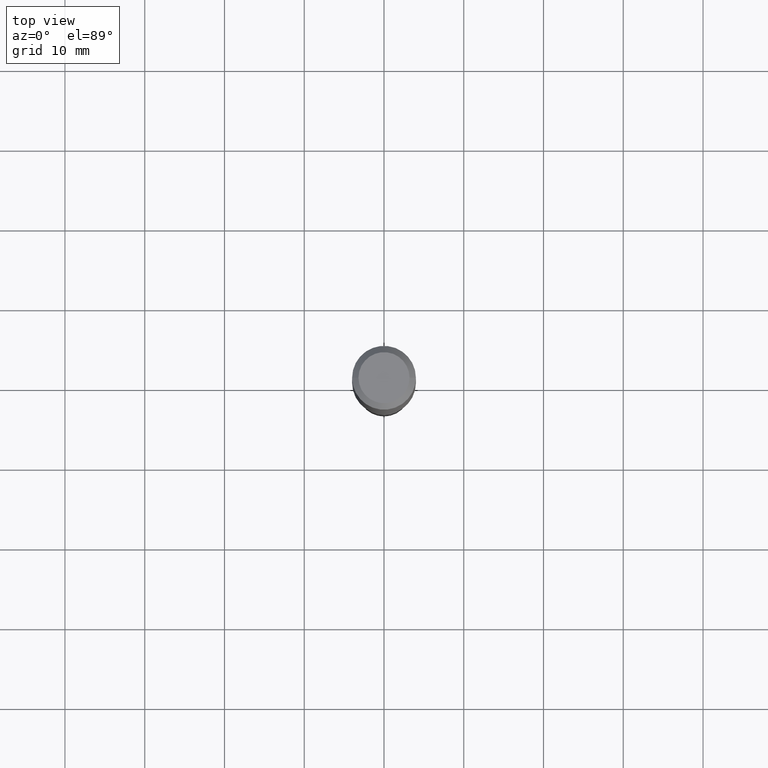
[diagram: clean part render]
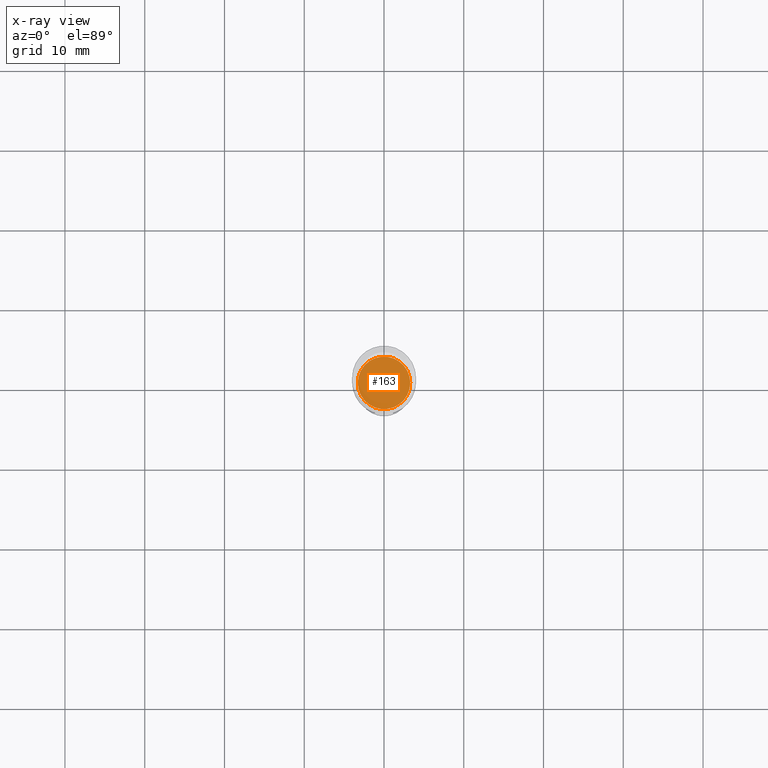
[diagram: x-ray — body ghosted, one internal face saturated and labeled with its STEP entity id]
A machine part, top view, then the same camera in x-ray: the body is ghosted and one INTERNAL B-rep face — a face not visible from any outside direction — is saturated and labeled: STEP entity #163.
In plain terms, the highlighted planar face has unit normal (-0, 0, 1).
Its self-contained STEP definition (entity closure, byte-faithful):
#3 = EDGE_LOOP ( 'NONE', ( #119, #77 ) ) ;
#30 = FACE_OUTER_BOUND ( 'NONE', #3, .T. ) ;
#70 = DIRECTION ( 'NONE',  ( 1.000000000000000000, -6.982962677686265922E-15, 4.876176775795935793E-29 ) ) ;
#77 = ORIENTED_EDGE ( 'NONE', *, *, #416, .F. ) ;
#96 = VERTEX_POINT ( 'NONE', #450 ) ;
#103 = PLANE ( 'NONE',  #201 ) ;
#108 = CIRCLE ( 'NONE', #251, 0.1293999999999999873 ) ;
#119 = ORIENTED_EDGE ( 'NONE', *, *, #331, .F. ) ;
#122 = VERTEX_POINT ( 'NONE', #405 ) ;
#128 = AXIS2_PLACEMENT_3D ( 'NONE', #157, #315, #206 ) ;
#157 = CARTESIAN_POINT ( 'NONE',  ( 3.659399521575439863E-29, -5.224652675444884140E-15, -1.496400000000000396 ) ) ;
#163 = ADVANCED_FACE ( 'NONE', ( #30 ), #103, .F. ) ;
#201 = AXIS2_PLACEMENT_3D ( 'NONE', #312, #266, #70 ) ;
#206 = DIRECTION ( 'NONE',  ( 1.000000000000000000, -6.982962677686265133E-15, 0.000000000000000000 ) ) ;
#251 = AXIS2_PLACEMENT_3D ( 'NONE', #321, #284, #286 ) ;
#266 = DIRECTION ( 'NONE',  ( -2.438088387897960049E-29, 3.491481338843145188E-15, 1.000000000000000000 ) ) ;
#284 = DIRECTION ( 'NONE',  ( -2.445468806185136597E-29, 3.491481338843145583E-15, 1.000000000000000000 ) ) ;
#286 = DIRECTION ( 'NONE',  ( 1.000000000000000000, -6.982962677686265133E-15, 0.000000000000000000 ) ) ;
#312 = CARTESIAN_POINT ( 'NONE',  ( 1.453378357895890987E-29, -8.383800540761116841E-15, -1.496400000000000396 ) ) ;
#315 = DIRECTION ( 'NONE',  ( -2.445468806185136597E-29, 3.491481338843145583E-15, 1.000000000000000000 ) ) ;
#321 = CARTESIAN_POINT ( 'NONE',  ( 3.659399521575439863E-29, -5.224652675444884140E-15, -1.496400000000000396 ) ) ;
#331 = EDGE_CURVE ( 'NONE', #96, #122, #108, .T. ) ;
#405 = CARTESIAN_POINT ( 'NONE',  ( -0.1293999999999999873, -4.302561148197203586E-15, -1.496400000000000396 ) ) ;
#416 = EDGE_CURVE ( 'NONE', #122, #96, #490, .T. ) ;
#450 = CARTESIAN_POINT ( 'NONE',  ( 0.1293999999999999873, -6.128248045937486730E-15, -1.496400000000000396 ) ) ;
#490 = CIRCLE ( 'NONE', #128, 0.1293999999999999873 ) ;